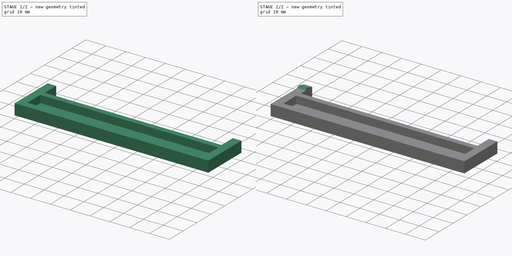
[diagram: build sequence overview — one tinted view per stage of 2, left to right]
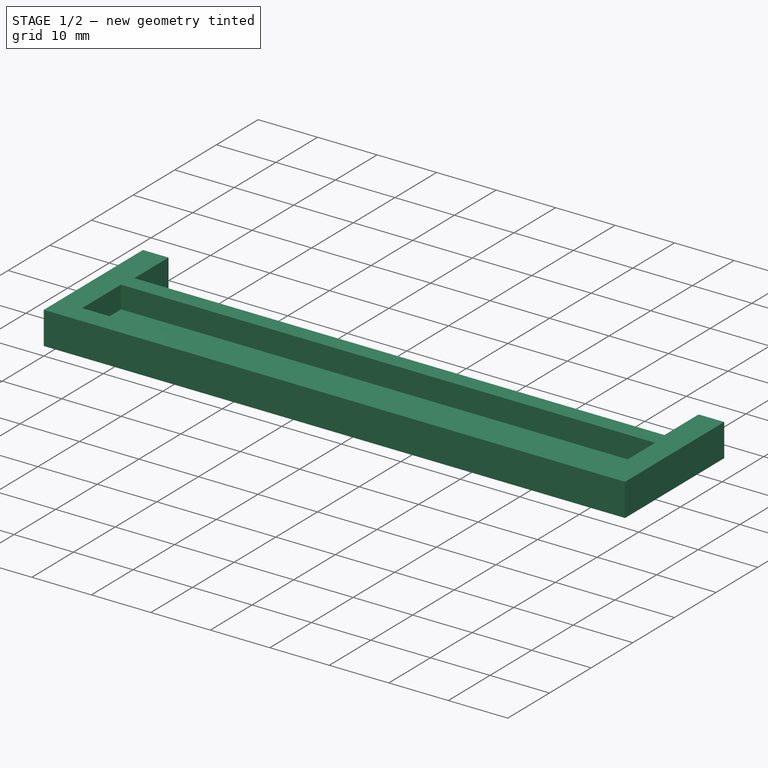
[diagram: stage 1 of 2 — iso view after this stage's code; geometry added in this stage tinted green]
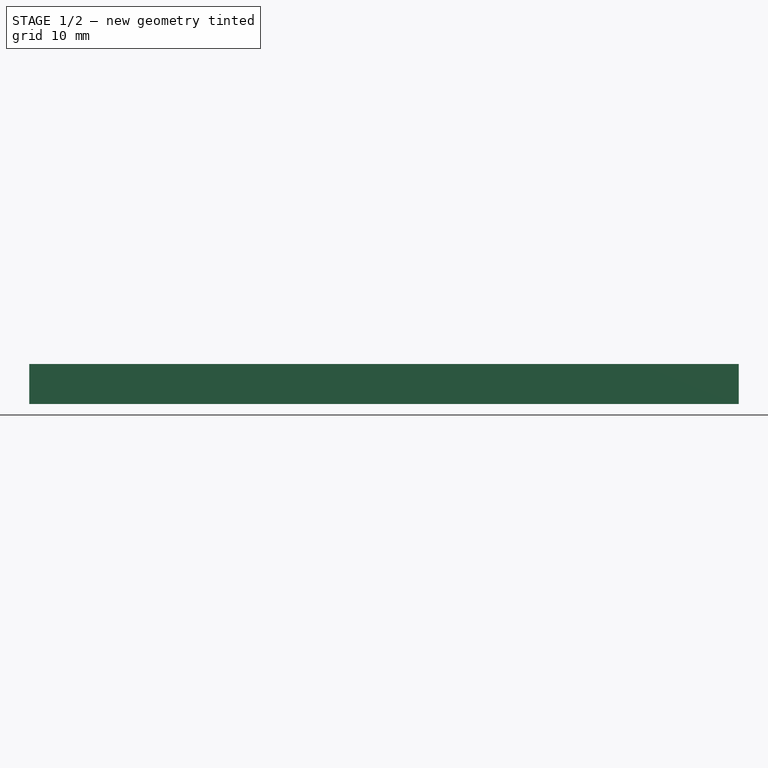
[diagram: stage 1 of 2 — front view after this stage's code; geometry added in this stage tinted green]
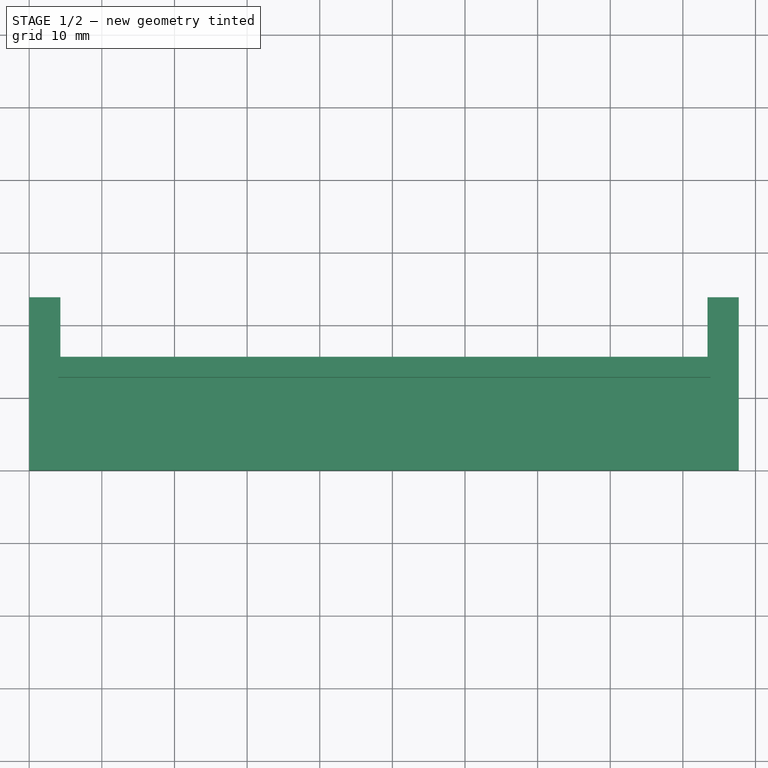
[diagram: stage 1 of 2 — top view after this stage's code; geometry added in this stage tinted green]
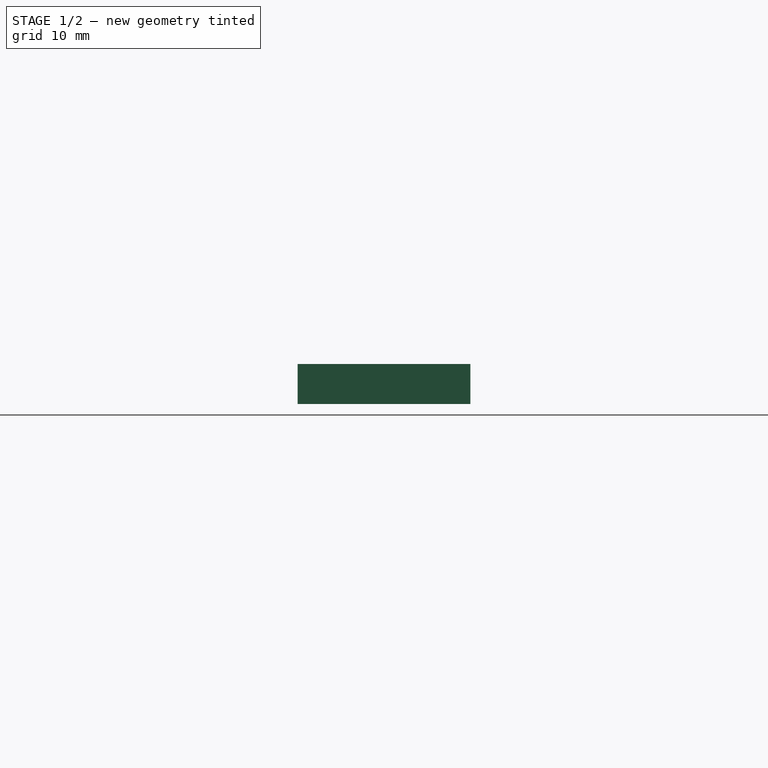
[diagram: stage 1 of 2 — right view after this stage's code; geometry added in this stage tinted green]
FCSTD DOCUMENT  (FreeCAD 0.19R24276 (Git))
Label: prendedorLancheira
License: All rights reserved
LicenseURL: http://en.wikipedia.org/wiki/All_rights_reserved
objects: Sketcher::SketchObject×4, PartDesign::Pad×2, PartDesign::Pocket×1, PartDesign::Body×1
note: 11 computed .brp shape members not serialized (recipe doc carries the construction recipe); baked Part::Feature solids carry a one-line shape summary decoded from their .brp

FEATURE [Sketcher::SketchObject] Sketch
  FullyConstrained = true
  expr: Constraints[18] = 23.8mm
  sketch-geometry (8):
    g0: LineSegment StartX=0 StartY=0 StartZ=0 EndX=97.7 EndY=0 EndZ=0
    g1: LineSegment StartX=97.7 StartY=0 StartZ=0 EndX=97.7 EndY=23.8 EndZ=0
    g2: LineSegment StartX=97.7 StartY=23.8 StartZ=0 EndX=93.4 EndY=23.8 EndZ=0
    g3: LineSegment StartX=93.4 StartY=23.8 StartZ=0 EndX=93.4 EndY=15.6 EndZ=0
    g4: LineSegment StartX=93.4 StartY=15.6 StartZ=0 EndX=4.3 EndY=15.6 EndZ=0
    g5: LineSegment StartX=4.3 StartY=15.6 StartZ=0 EndX=4.3 EndY=23.8 EndZ=0
    g6: LineSegment StartX=4.3 StartY=23.8 StartZ=0 EndX=0 EndY=23.8 EndZ=0
    g7: LineSegment StartX=0 StartY=23.8 StartZ=0 EndX=0 EndY=0 EndZ=0
  constraints (23):
    c: Coincident(g-1,g0)
    c: Coincident(g0,g1)
    c: Coincident(g1,g2)
    c: Coincident(g2,g3)
    c: Coincident(g3,g4)
    c: Horizontal(g4)
    c: Coincident(g4,g5)
    c: Coincident(g5,g6)
    c: PointOnObject(g6,g-2)
    c: Coincident(g6,g7)
    c: Coincident(g7,g0)
    c: Vertical(g5)
    c: Vertical(g3)
    c: Vertical(g1)
    c: Horizontal(g6)
    c: Horizontal(g0)
    c: Horizontal(g2)
    c: DistanceX(g0,g0) = 97.7
    c: DistanceY(g7,g7) = 23.8
    c: DistanceX(g6,g6) = 4.3
    c: Equal(g6,g2)
    c: Equal(g7,g1)
    c: DistanceY(g5,g5) = 8.2
FEATURE [PartDesign::Pad] Pad
  Direction = (1,1,1)
  Length = 5.5
  Length2 = 100
  Profile = -> Sketch
  Type = 0
FEATURE [Sketcher::SketchObject] Sketch001
  FullyConstrained = true
  MapMode = 5
  Placement = pos=(0,0,5.5) rot=(0,0,1;0rad)
  Support = -> [Pad]
  sketch-geometry (4):
    g0: LineSegment StartX=4 StartY=12.8 StartZ=0 EndX=93.8 EndY=12.8 EndZ=0
    g1: LineSegment StartX=93.8 StartY=12.8 StartZ=0 EndX=93.8 EndY=3.5 EndZ=0
    g2: LineSegment StartX=93.8 StartY=3.5 StartZ=0 EndX=4 EndY=3.5 EndZ=0
    g3: LineSegment StartX=4 StartY=3.5 StartZ=0 EndX=4 EndY=12.8 EndZ=0
  constraints (12):
    c: Coincident(g0,g1)
    c: Coincident(g1,g2)
    c: Coincident(g2,g3)
    c: Coincident(g3,g0)
    c: Horizontal(g0)
    c: Horizontal(g2)
    c: Vertical(g1)
    c: Vertical(g3)
    c: DistanceX(g2) = 4
    c: DistanceY(g2) = 3.5
    c: DistanceY(g3,g3) = 9.3
    c: DistanceX(g2,g2) = 89.8
FEATURE [PartDesign::Pocket] Pocket
  BaseFeature = -> Pad
  Length = 3.75
  Length2 = 100
  Profile = -> Sketch001
  Type = 0
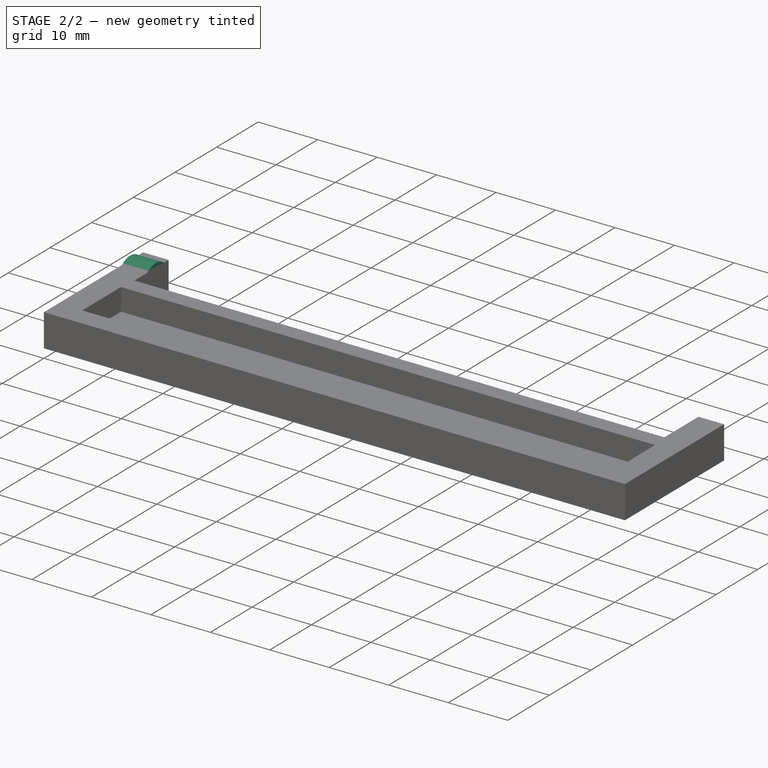
[diagram: stage 2 of 2 — iso view after this stage's code; geometry added in this stage tinted green]
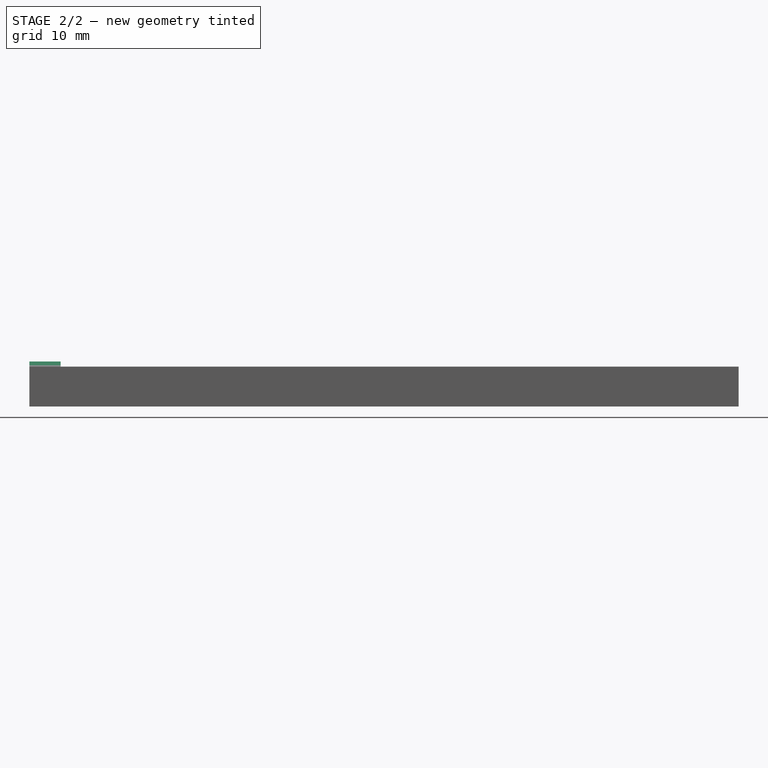
[diagram: stage 2 of 2 — front view after this stage's code; geometry added in this stage tinted green]
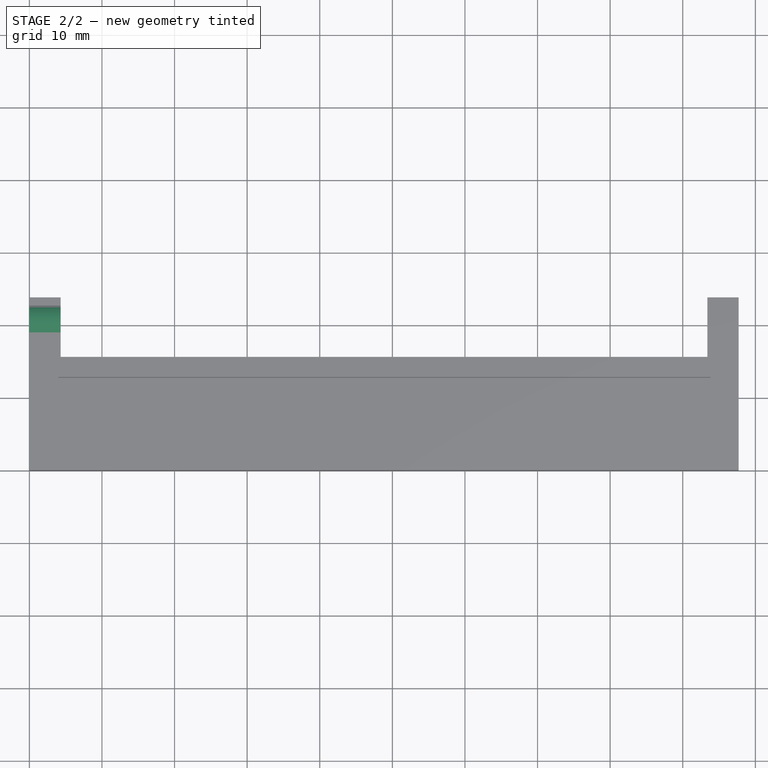
[diagram: stage 2 of 2 — top view after this stage's code; geometry added in this stage tinted green]
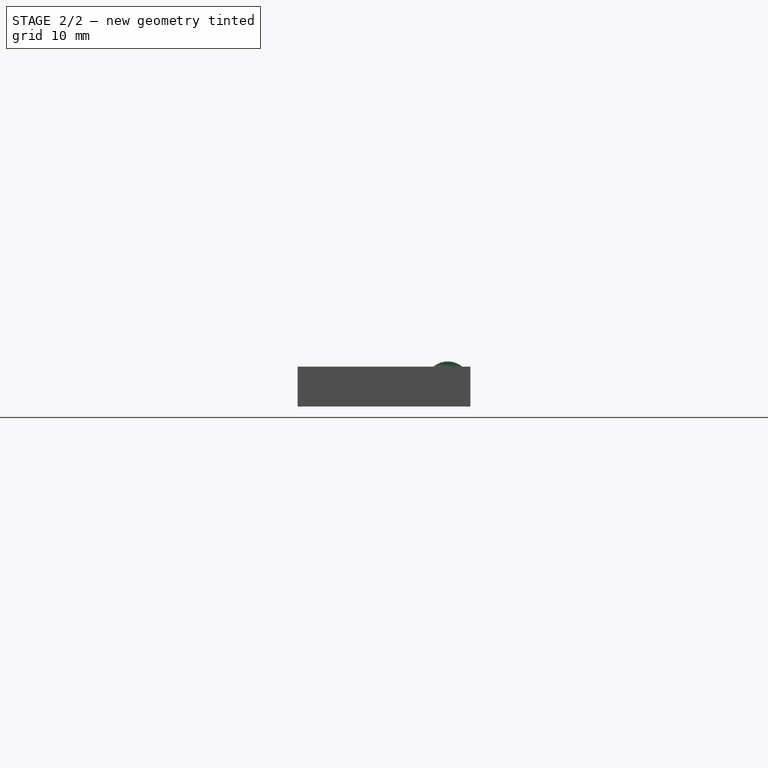
[diagram: stage 2 of 2 — right view after this stage's code; geometry added in this stage tinted green]
FEATURE [Sketcher::SketchObject] Sketch002
  FullyConstrained = true
  MapMode = 5
  Placement = pos=(0,0,0) rot=(0.57735,-0.57735,-0.57735;2.0944rad)
  Support = -> [Pocket]
  sketch-geometry (1):
    g0: Circle CenterX=-20.69 CenterY=3.1 CenterZ=0 NormalX=0 NormalY=0 NormalZ=1 AngleXU=0 Radius=3.1
  constraints (3):
    c: Radius(g0) = 3.1
    c: Tangent(g0,g-1)
    c: Distance(g0,g-2) = 20.69
FEATURE [PartDesign::Pad] Pad001
  BaseFeature = -> Pocket
  Direction = (1,1,1)
  Length = 4.3
  Length2 = 100
  Profile = -> Sketch002
  Reversed = true
  Type = 0
FEATURE [Sketcher::SketchObject] Sketch003
  FullyConstrained = false
  MapMode = 5
  Placement = pos=(0,0,0) rot=(0.57735,-0.57735,-0.57735;2.0944rad)
  Support = -> [Pad001]
  sketch-geometry (10):
    g0: LineSegment StartX=-23.8 StartY=5.5 StartZ=0 EndX=-20.6527 EndY=5.5 EndZ=0
    g1: LineSegment StartX=-20.6527 StartY=5.5 StartZ=0 EndX=-20.6527 EndY=0 EndZ=0
    g2: LineSegment StartX=-20.6527 StartY=0 StartZ=0 EndX=-23.8 EndY=0 EndZ=0
    g3: LineSegment StartX=-23.8 StartY=0 StartZ=0 EndX=-23.8 EndY=5.5 EndZ=0
    g4: ArcOfCircle CenterX=-20.69 CenterY=3.1 CenterZ=0 NormalX=0 NormalY=0 NormalZ=1 AngleXU=0 Radius=3.1 StartAngle=2.25615 EndAngle=4.72441
    g5: LineSegment StartX=37.0288 StartY=41.7119 StartZ=0 EndX=38.2902 EndY=41.7119 EndZ=0
    g6: LineSegment StartX=45.7215 StartY=41.7119 StartZ=0 EndX=45.7215 EndY=28.245 EndZ=0
    g7: LineSegment StartX=45.7215 StartY=28.245 StartZ=0 EndX=37.0288 EndY=28.245 EndZ=0
    g8: LineSegment StartX=37.0288 StartY=28.245 StartZ=0 EndX=37.0288 EndY=41.7119 EndZ=0
    g9: ArcOfCircle CenterX=45.7215 CenterY=37.0248 CenterZ=0 NormalX=0 NormalY=0 NormalZ=1 AngleXU=0 Radius=8.78593 StartAngle=2.57889 EndAngle=4.67509
  constraints (26):
    c: Coincident(g0,g1)
    c: Coincident(g1,g2)
    c: Coincident(g2,g3)
    c: Coincident(g3,g0)
    c: Horizontal(g0)
    c: Horizontal(g2)
    c: Vertical(g1)
    c: Vertical(g3)
    c: DistanceX(g2) = -23.8
    c: DistanceY(g2) = 0
    c: DistanceY(g3,g3) = 5.5
    c: Radius(g4) = 3.1
    c: Distance(g4,g-2) = 20.69
    c: Tangent(g4,g-1)
    c: PointOnObject(g4,g0)
    c: PointOnObject(g4,g1)
    c: Coincident(g6,g7)
    c: Coincident(g7,g8)
    c: Coincident(g8,g5)
    c: Horizontal(g5)
    c: Horizontal(g7)
    c: Vertical(g6)
    c: Vertical(g8)
    c: PointOnObject(g9,g6)
    c: Coincident(g9,g5)
    c: PointOnObject(g9,g7)
FEATURE [PartDesign::Body] Body
  Group = -> [Sketch,Pad,Sketch001,Pocket,Sketch002,Pad001,Sketch003]
  Origin = -> Origin
  Tip = -> Pad001
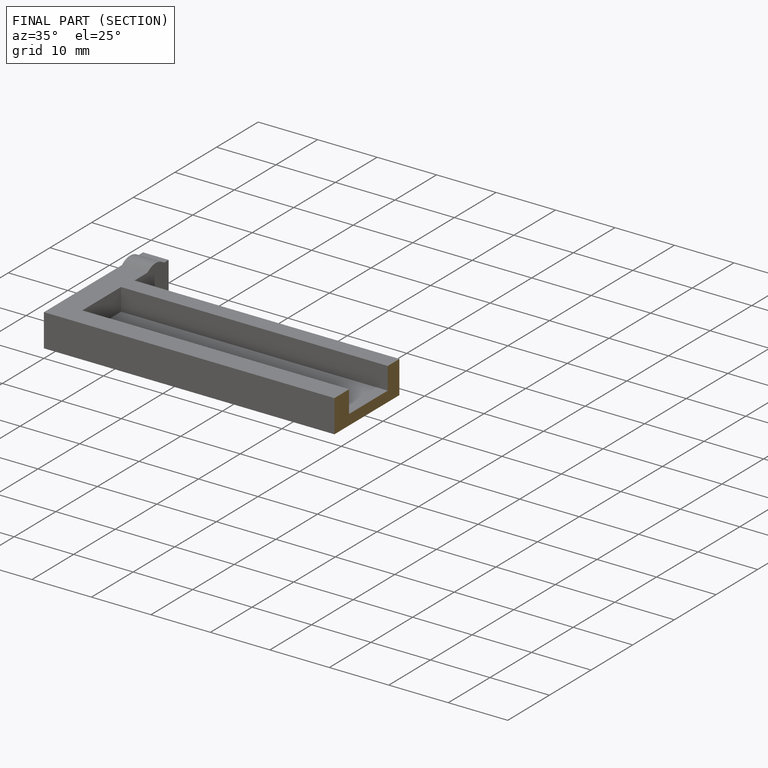
[diagram: finished part — half-section view (interior)]
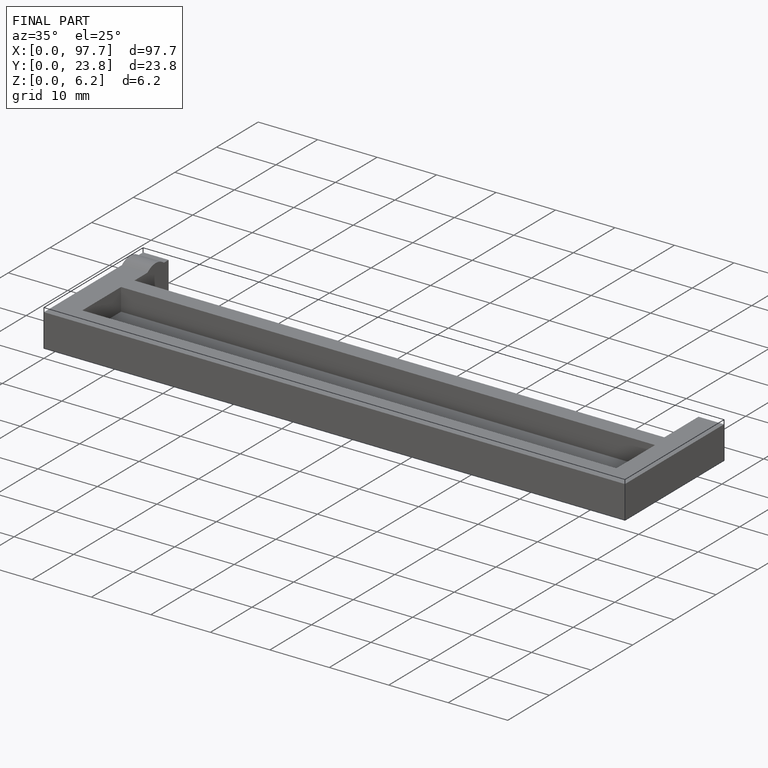
[diagram: finished part — iso view with bounding-box wireframe]
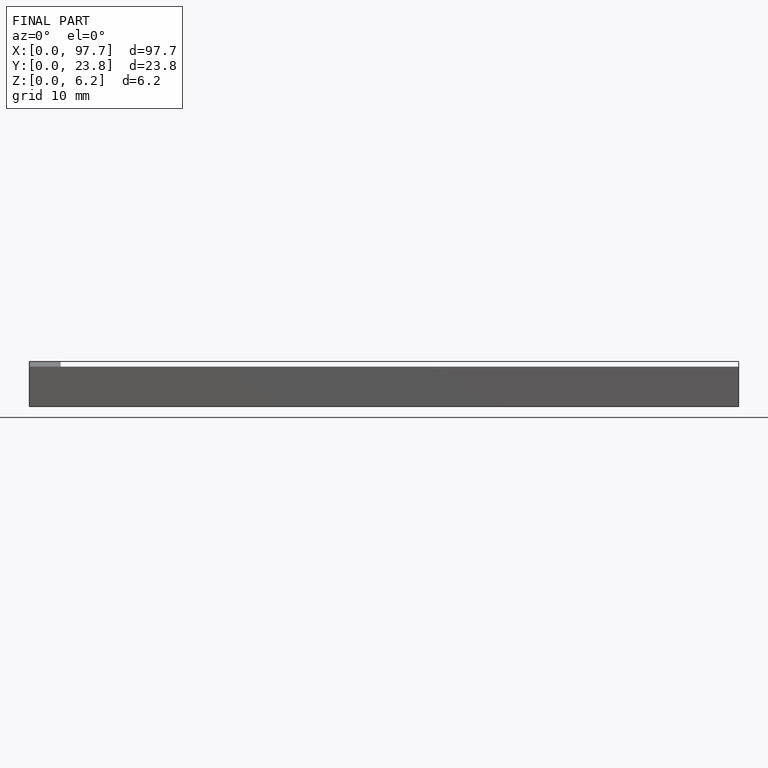
[diagram: finished part — front view with bounding-box wireframe]
